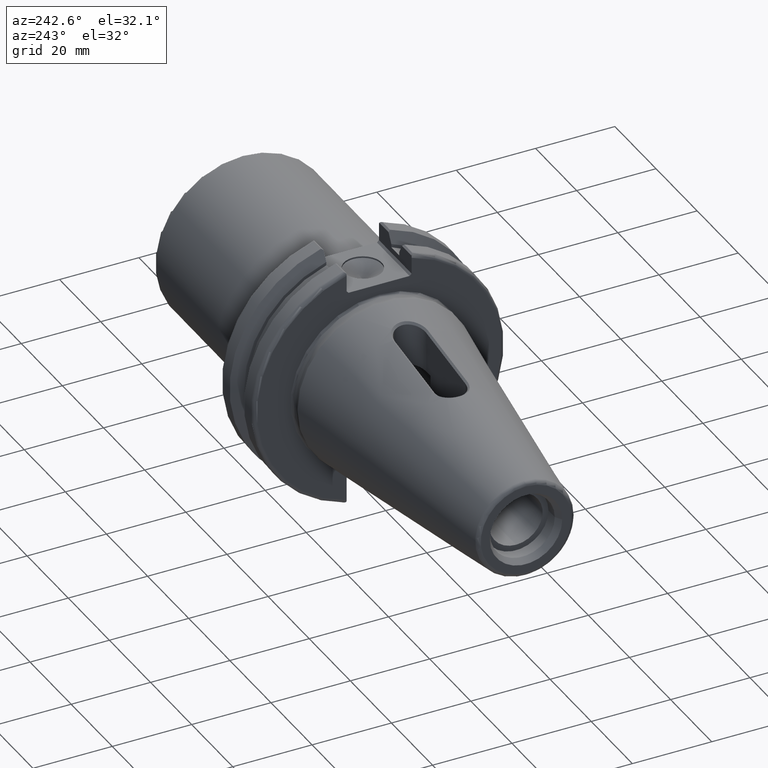
[diagram: clean part render]
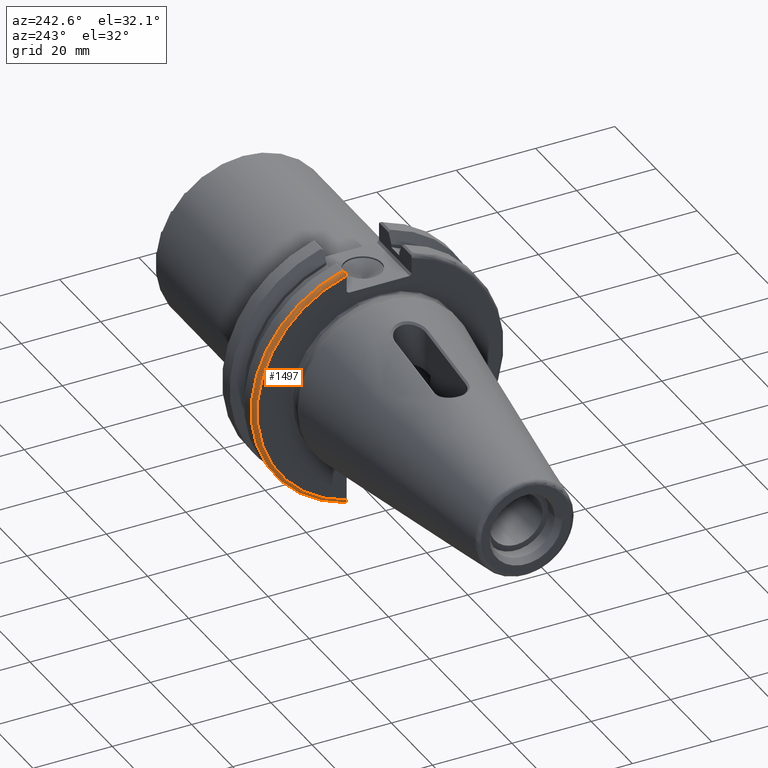
[diagram: same view with one face highlighted and labeled with its STEP entity id]
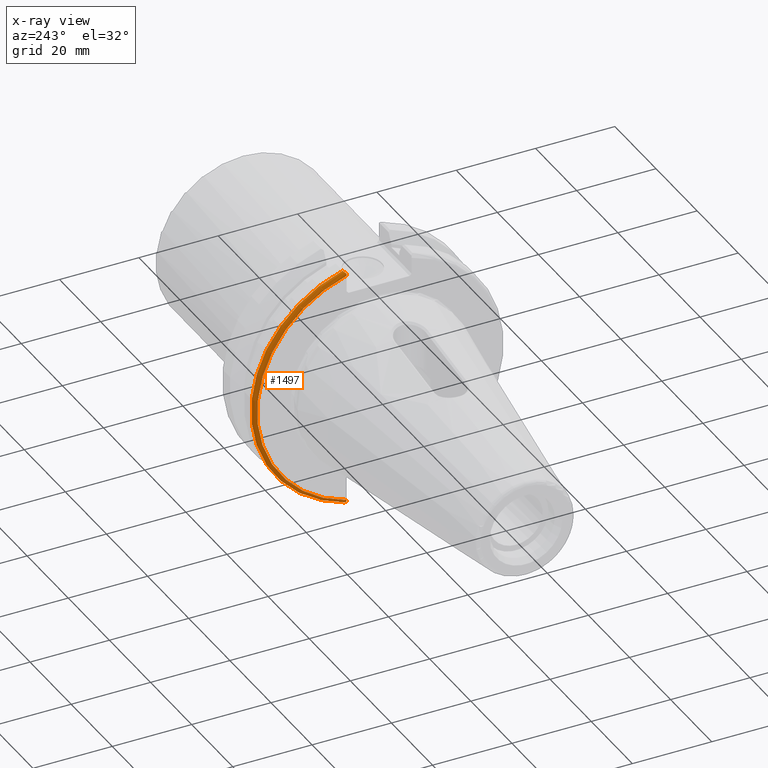
[diagram: x-ray of the same camera — body ghosted, the highlighted face saturated]
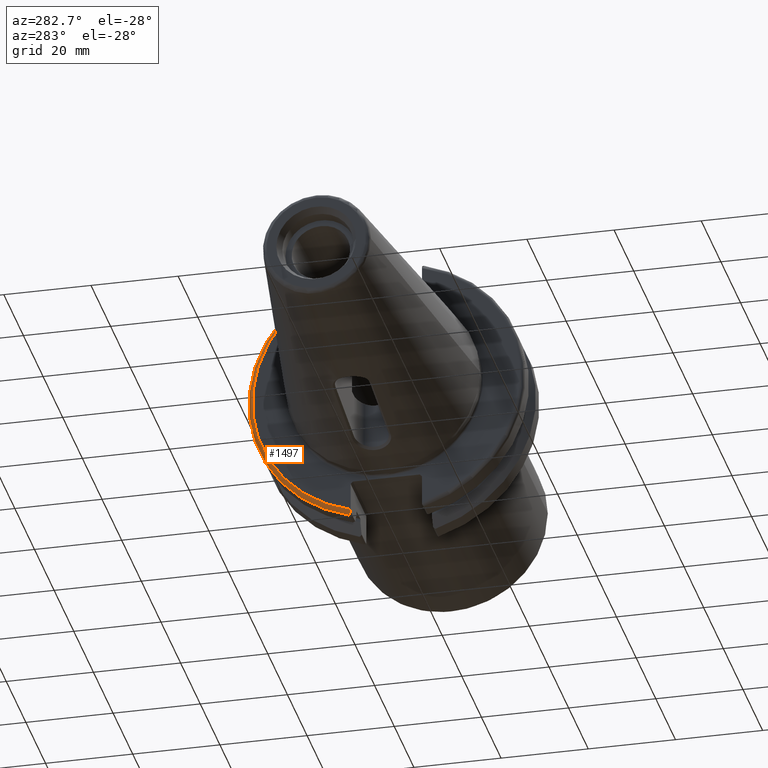
[diagram: same view with one face highlighted and labeled with its STEP entity id]
A machine part, auxiliary view. The second image highlights one B-rep face of the part: STEP entity #1497.
The next image is the same camera in x-ray: the body ghosted, the highlighted face saturated — about 0% of this face is hidden behind the body in this view.
A second angle (auxiliary view) of the same face is appended — the face is thin or edge-on in the first view.
In plain terms, the highlighted toroidal blend (fillet) surface has major radius 30.75 mm and minor (blend) radius 1 mm.
Its self-contained STEP definition (entity closure, byte-faithful):
#90=B_SPLINE_CURVE_WITH_KNOTS('',3,(#2979,#2980,#2981,#2982,#2983,#2984),
 .UNSPECIFIED.,.F.,.F.,(4,2,4),(0.0977210450333169,0.111963554372601,0.150804064902975),
 .UNSPECIFIED.);
#99=B_SPLINE_CURVE_WITH_KNOTS('',3,(#3144,#3145,#3146,#3147,#3148,#3149,
#3150,#3151),.UNSPECIFIED.,.F.,.F.,(4,2,2,4),(-0.104180282751876,-0.072978474246144,
-0.0343524753874979,0.),.UNSPECIFIED.);
#100=B_SPLINE_CURVE_WITH_KNOTS('',3,(#3154,#3155,#3156,#3157,#3158,#3159,
#3160,#3161),.UNSPECIFIED.,.F.,.F.,(4,2,2,4),(0.,0.0343524753874975,0.0729784742461445,
0.104180282751877),.UNSPECIFIED.);
#101=B_SPLINE_CURVE_WITH_KNOTS('',3,(#3162,#3163,#3164,#3165,#3166,#3167),
 .UNSPECIFIED.,.F.,.F.,(4,2,4),(0.452741154494498,0.491581665024872,0.505824174364157),
 .UNSPECIFIED.);
#124=TOROIDAL_SURFACE('',#1621,30.75,1.);
#215=FACE_OUTER_BOUND('',#302,.T.);
#302=EDGE_LOOP('',(#1284,#1285,#1286,#1287,#1288,#1289));
#575=CIRCLE('',#1601,30.75);
#583=CIRCLE('',#1622,31.75);
#677=VERTEX_POINT('',#2912);
#678=VERTEX_POINT('',#2914);
#693=VERTEX_POINT('',#2978);
#730=VERTEX_POINT('',#3142);
#731=VERTEX_POINT('',#3143);
#732=VERTEX_POINT('',#3152);
#863=EDGE_CURVE('',#678,#677,#575,.T.);
#882=EDGE_CURVE('',#693,#678,#90,.T.);
#931=EDGE_CURVE('',#730,#731,#99,.T.);
#932=EDGE_CURVE('',#731,#732,#583,.T.);
#933=EDGE_CURVE('',#732,#693,#100,.T.);
#934=EDGE_CURVE('',#677,#730,#101,.T.);
#1284=ORIENTED_EDGE('',*,*,#931,.T.);
#1285=ORIENTED_EDGE('',*,*,#932,.T.);
#1286=ORIENTED_EDGE('',*,*,#933,.T.);
#1287=ORIENTED_EDGE('',*,*,#882,.T.);
#1288=ORIENTED_EDGE('',*,*,#863,.T.);
#1289=ORIENTED_EDGE('',*,*,#934,.T.);
#1497=ADVANCED_FACE('',(#215),#124,.T.);
#1601=AXIS2_PLACEMENT_3D('',#2915,#1817,#1818);
#1621=AXIS2_PLACEMENT_3D('',#3141,#1895,#1896);
#1622=AXIS2_PLACEMENT_3D('',#3153,#1897,#1898);
#1817=DIRECTION('center_axis',(1.,0.,0.));
#1818=DIRECTION('ref_axis',(0.,1.,1.60812264967664E-16));
#1895=DIRECTION('center_axis',(1.,0.,0.));
#1896=DIRECTION('ref_axis',(0.,0.,-1.));
#1897=DIRECTION('center_axis',(-1.,0.,0.));
#1898=DIRECTION('ref_axis',(0.,1.,1.60812264967664E-16));
#2912=CARTESIAN_POINT('',(3.175,8.19,29.6392712461019));
#2914=CARTESIAN_POINT('',(3.175,8.18999999999999,-29.6392712461019));
#2915=CARTESIAN_POINT('Origin',(3.175,0.,0.));
#2978=CARTESIAN_POINT('',(3.31912772509028,8.19,-30.1755016258903));
#2979=CARTESIAN_POINT('Ctrl Pts',(3.31912772509028,8.19,-30.1755016258903));
#2980=CARTESIAN_POINT('Ctrl Pts',(3.29318362718666,8.19,-30.131014531546));
#2981=CARTESIAN_POINT('Ctrl Pts',(3.27103565282437,8.19,-30.0852355256475));
#2982=CARTESIAN_POINT('Ctrl Pts',(3.20451443291695,8.19,-29.9212724384851));
#2983=CARTESIAN_POINT('Ctrl Pts',(3.175,8.19,-29.7687396145364));
#2984=CARTESIAN_POINT('Ctrl Pts',(3.175,8.19,-29.6392712461019));
#3141=CARTESIAN_POINT('Origin',(4.175,0.,0.));
#3142=CARTESIAN_POINT('',(3.31912772509028,8.19,30.1755016258903));
#3143=CARTESIAN_POINT('',(4.175,8.67204822802685,30.5427254764662));
#3144=CARTESIAN_POINT('Ctrl Pts',(3.31912772509028,8.19,30.1755016258903));
#3145=CARTESIAN_POINT('Ctrl Pts',(3.36755369570114,8.2703682833078,30.2367261024977));
#3146=CARTESIAN_POINT('Ctrl Pts',(3.43232973376814,8.34909446036477,30.2966996242308));
#3147=CARTESIAN_POINT('Ctrl Pts',(3.58532758094931,8.48862804755884,30.4029961692546));
#3148=CARTESIAN_POINT('Ctrl Pts',(3.70655857052286,8.56482138642532,30.4610401774263));
#3149=CARTESIAN_POINT('Ctrl Pts',(3.92668295662254,8.6471881193939,30.5237870709558));
#3150=CARTESIAN_POINT('Ctrl Pts',(4.06049174870834,8.67204822802686,30.5427254764662));
#3151=CARTESIAN_POINT('Ctrl Pts',(4.175,8.67204822802686,30.5427254764662));
#3152=CARTESIAN_POINT('',(4.175,8.67204822802685,-30.5427254764662));
#3153=CARTESIAN_POINT('Origin',(4.175,0.,0.));
#3154=CARTESIAN_POINT('Ctrl Pts',(4.175,8.67204822802685,-30.5427254764662));
#3155=CARTESIAN_POINT('Ctrl Pts',(4.06049174870834,8.67204822802685,-30.5427254764662));
#3156=CARTESIAN_POINT('Ctrl Pts',(3.92668295662254,8.6471881193939,-30.5237870709558));
#3157=CARTESIAN_POINT('Ctrl Pts',(3.70655857052286,8.56482138642533,-30.4610401774263));
#3158=CARTESIAN_POINT('Ctrl Pts',(3.58532758094931,8.48862804755884,-30.4029961692546));
#3159=CARTESIAN_POINT('Ctrl Pts',(3.43232973376814,8.34909446036477,-30.2966996242308));
#3160=CARTESIAN_POINT('Ctrl Pts',(3.36755369570113,8.2703682833078,-30.2367261024977));
#3161=CARTESIAN_POINT('Ctrl Pts',(3.31912772509028,8.18999999999999,-30.1755016258903));
#3162=CARTESIAN_POINT('Ctrl Pts',(3.175,8.19,29.6392712461018));
#3163=CARTESIAN_POINT('Ctrl Pts',(3.175,8.19,29.7687396145364));
#3164=CARTESIAN_POINT('Ctrl Pts',(3.20451443291695,8.19,29.9212724384851));
#3165=CARTESIAN_POINT('Ctrl Pts',(3.27103565282437,8.19,30.0852355256475));
#3166=CARTESIAN_POINT('Ctrl Pts',(3.29318362718666,8.19,30.131014531546));
#3167=CARTESIAN_POINT('Ctrl Pts',(3.31912772509028,8.19,30.1755016258903));